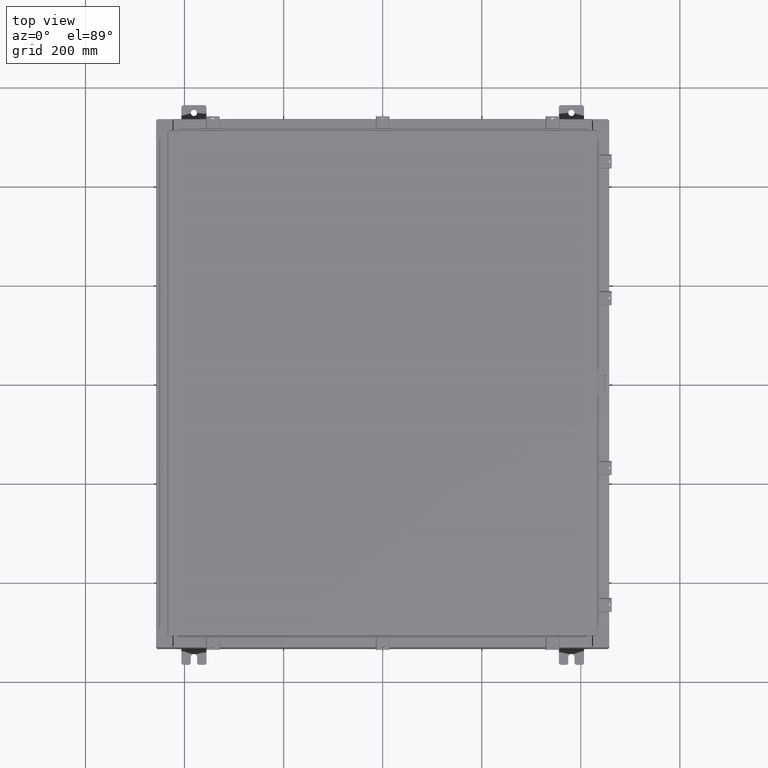
[diagram: clean part render]
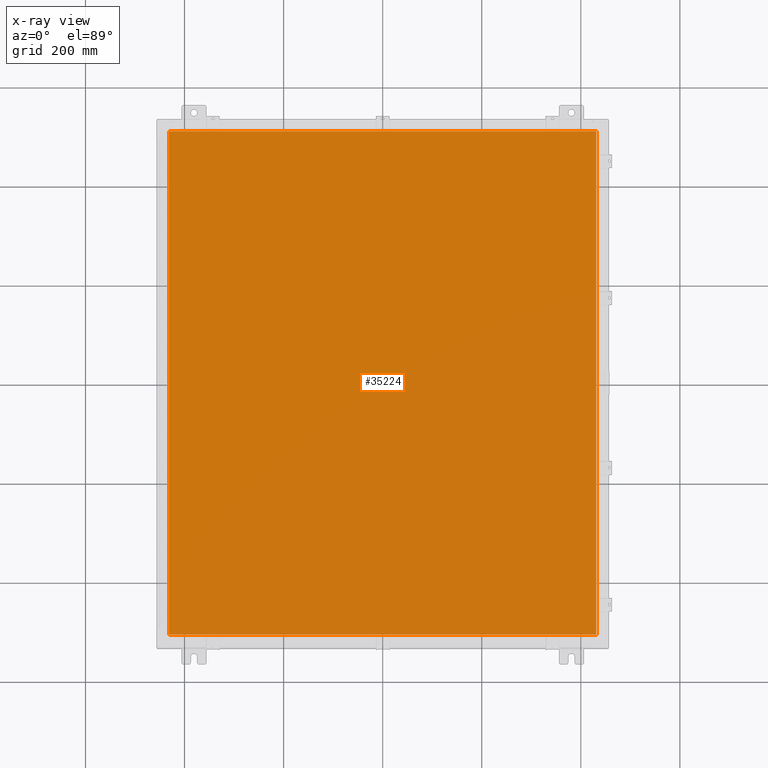
[diagram: x-ray — body ghosted, one internal face saturated and labeled with its STEP entity id]
A machine part, top view, then the same camera in x-ray: the body is ghosted and one INTERNAL B-rep face — a face not visible from any outside direction — is saturated and labeled: STEP entity #35224.
In plain terms, the highlighted planar face has unit normal (0, 0, -1).
Its self-contained STEP definition (entity closure, byte-faithful):
#552 = VECTOR ( 'NONE', #35363, 39.37007874015748100 ) ;
#2054 = VERTEX_POINT ( 'NONE', #4583 ) ;
#4583 = CARTESIAN_POINT ( 'NONE',  ( -16.99029999999999400, 20.00630000000000300, -0.07470000000000000300 ) ) ;
#5134 = CARTESIAN_POINT ( 'NONE',  ( 0.0000000000000000000, 0.0000000000000000000, -0.07470000000000000300 ) ) ;
#7210 = VECTOR ( 'NONE', #49518, 39.37007874015748100 ) ;
#7234 = EDGE_CURVE ( 'NONE', #14552, #2054, #17366, .T. ) ;
#7395 = DIRECTION ( 'NONE',  ( 0.0000000000000000000, -1.000000000000000000, 0.0000000000000000000 ) ) ;
#7444 = CARTESIAN_POINT ( 'NONE',  ( 16.99029999999999800, -20.00630000000000300, -0.07470000000000000300 ) ) ;
#7886 = EDGE_CURVE ( 'NONE', #2054, #26413, #12482, .T. ) ;
#8157 = EDGE_CURVE ( 'NONE', #26413, #33221, #30963, .T. ) ;
#8947 = PLANE ( 'NONE',  #12119 ) ;
#12119 = AXIS2_PLACEMENT_3D ( 'NONE', #5134, #39449, #16633 ) ;
#12482 = LINE ( 'NONE', #37881, #20259 ) ;
#12502 = CARTESIAN_POINT ( 'NONE',  ( -16.99029999999999800, -20.00630000000000700, -0.07469999999999804600 ) ) ;
#14552 = VERTEX_POINT ( 'NONE', #33712 ) ;
#16633 = DIRECTION ( 'NONE',  ( -1.000000000000000000, 0.0000000000000000000, -0.0000000000000000000 ) ) ;
#17366 = LINE ( 'NONE', #38116, #7210 ) ;
#20259 = VECTOR ( 'NONE', #7395, 39.37007874015748100 ) ;
#20647 = LINE ( 'NONE', #32272, #31971 ) ;
#24601 = DIRECTION ( 'NONE',  ( 0.0000000000000000000, 1.000000000000000000, 0.0000000000000000000 ) ) ;
#26413 = VERTEX_POINT ( 'NONE', #31475 ) ;
#30963 = LINE ( 'NONE', #12502, #552 ) ;
#31475 = CARTESIAN_POINT ( 'NONE',  ( -16.99029999999999800, -20.00630000000000300, -0.07470000000000000300 ) ) ;
#31971 = VECTOR ( 'NONE', #24601, 39.37007874015748100 ) ;
#32154 = ORIENTED_EDGE ( 'NONE', *, *, #7886, .F. ) ;
#32211 = ORIENTED_EDGE ( 'NONE', *, *, #8157, .F. ) ;
#32272 = CARTESIAN_POINT ( 'NONE',  ( 16.99029999999999800, -20.00630000000000300, -0.07470000000000019700 ) ) ;
#32988 = ORIENTED_EDGE ( 'NONE', *, *, #35274, .F. ) ;
#33221 = VERTEX_POINT ( 'NONE', #7444 ) ;
#33712 = CARTESIAN_POINT ( 'NONE',  ( 16.99029999999999800, 20.00630000000000300, -0.07470000000000000300 ) ) ;
#34382 = FACE_OUTER_BOUND ( 'NONE', #45619, .T. ) ;
#35224 = ADVANCED_FACE ( 'NONE', ( #34382 ), #8947, .T. ) ;
#35274 = EDGE_CURVE ( 'NONE', #33221, #14552, #20647, .T. ) ;
#35363 = DIRECTION ( 'NONE',  ( 1.000000000000000000, -0.0000000000000000000, -0.0000000000000000000 ) ) ;
#37881 = CARTESIAN_POINT ( 'NONE',  ( -16.99029999999999400, 20.00630000000000300, -0.07470000000000019700 ) ) ;
#38116 = CARTESIAN_POINT ( 'NONE',  ( 16.99029999999999800, 20.00630000000000700, -0.07469999999999804600 ) ) ;
#38750 = ORIENTED_EDGE ( 'NONE', *, *, #7234, .F. ) ;
#39449 = DIRECTION ( 'NONE',  ( 0.0000000000000000000, 0.0000000000000000000, -1.000000000000000000 ) ) ;
#45619 = EDGE_LOOP ( 'NONE', ( #32988, #32211, #32154, #38750 ) ) ;
#49518 = DIRECTION ( 'NONE',  ( -1.000000000000000000, -0.0000000000000000000, -0.0000000000000000000 ) ) ;